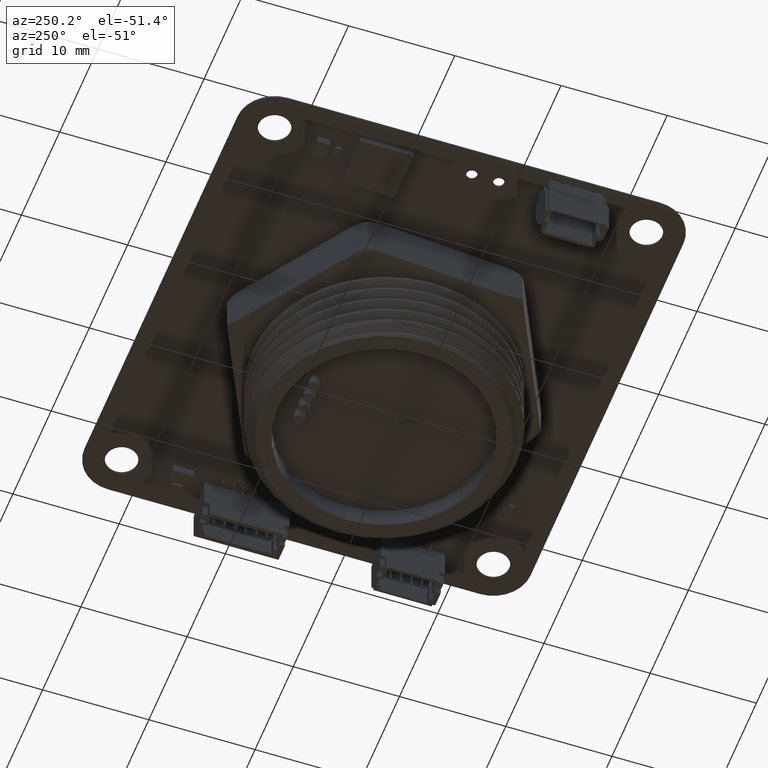
[diagram: clean part render]
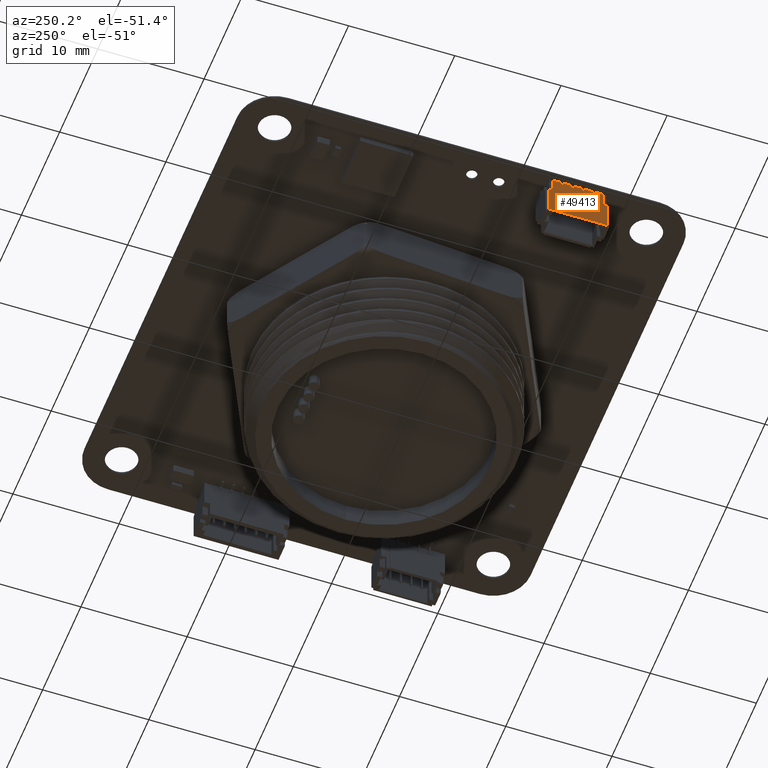
[diagram: same view with one face highlighted and labeled with its STEP entity id]
A machine part, auxiliary view. The second image highlights one B-rep face of the part: STEP entity #49413.
In plain terms, the highlighted planar face has unit normal (1, -0, 0).
Its self-contained STEP definition (entity closure, byte-faithful):
#49413 = ADVANCED_FACE('',(#49414),#49672,.F.);
#49414 = FACE_BOUND('',#49415,.T.);
#49415 = EDGE_LOOP('',(#49416,#49426,#49434,#49442,#49450,#49458,#49466,
    #49474,#49482,#49490,#49498,#49506,#49514,#49522,#49530,#49538,
    #49546,#49554,#49562,#49570,#49578,#49586,#49594,#49602,#49610,
    #49618,#49626,#49634,#49642,#49650,#49658,#49666));
#49416 = ORIENTED_EDGE('',*,*,#49417,.F.);
#49417 = EDGE_CURVE('',#49418,#49420,#49422,.T.);
#49418 = VERTEX_POINT('',#49419);
#49419 = CARTESIAN_POINT('',(2.35,1.588675134595,-1.45));
#49420 = VERTEX_POINT('',#49421);
#49421 = CARTESIAN_POINT('',(2.75,1.588675134595,-1.45));
#49422 = LINE('',#49423,#49424);
#49423 = CARTESIAN_POINT('',(2.5,1.588675134595,-1.45));
#49424 = VECTOR('',#49425,1.);
#49425 = DIRECTION('',(1.,-0.,-0.));
#49426 = ORIENTED_EDGE('',*,*,#49427,.T.);
#49427 = EDGE_CURVE('',#49418,#49428,#49430,.T.);
#49428 = VERTEX_POINT('',#49429);
#49429 = CARTESIAN_POINT('',(2.35,0.1,-1.45));
#49430 = LINE('',#49431,#49432);
#49431 = CARTESIAN_POINT('',(2.35,0.1,-1.45));
#49432 = VECTOR('',#49433,1.);
#49433 = DIRECTION('',(0.,-1.,0.));
#49434 = ORIENTED_EDGE('',*,*,#49435,.T.);
#49435 = EDGE_CURVE('',#49428,#49436,#49438,.T.);
#49436 = VERTEX_POINT('',#49437);
#49437 = CARTESIAN_POINT('',(1.725,1.E-01,-1.45));
#49438 = LINE('',#49439,#49440);
#49439 = CARTESIAN_POINT('',(3.,0.1,-1.45));
#49440 = VECTOR('',#49441,1.);
#49441 = DIRECTION('',(-1.,-0.,-0.));
#49442 = ORIENTED_EDGE('',*,*,#49443,.F.);
#49443 = EDGE_CURVE('',#49444,#49436,#49446,.T.);
#49444 = VERTEX_POINT('',#49445);
#49445 = CARTESIAN_POINT('',(1.575,0.25,-1.45));
#49446 = LINE('',#49447,#49448);
#49447 = CARTESIAN_POINT('',(2.3625,-0.5375,-1.45));
#49448 = VECTOR('',#49449,1.);
#49449 = DIRECTION('',(0.707106781187,-0.707106781187,0.));
#49450 = ORIENTED_EDGE('',*,*,#49451,.F.);
#49451 = EDGE_CURVE('',#49452,#49444,#49454,.T.);
#49452 = VERTEX_POINT('',#49453);
#49453 = CARTESIAN_POINT('',(1.575,0.7,-1.45));
#49454 = LINE('',#49455,#49456);
#49455 = CARTESIAN_POINT('',(1.575,0.1,-1.45));
#49456 = VECTOR('',#49457,1.);
#49457 = DIRECTION('',(0.,-1.,0.));
#49458 = ORIENTED_EDGE('',*,*,#49459,.F.);
#49459 = EDGE_CURVE('',#49460,#49452,#49462,.T.);
#49460 = VERTEX_POINT('',#49461);
#49461 = CARTESIAN_POINT('',(1.425,0.7,-1.45));
#49462 = LINE('',#49463,#49464);
#49463 = CARTESIAN_POINT('',(3.,0.7,-1.45));
#49464 = VECTOR('',#49465,1.);
#49465 = DIRECTION('',(1.,0.,-0.));
#49466 = ORIENTED_EDGE('',*,*,#49467,.T.);
#49467 = EDGE_CURVE('',#49460,#49468,#49470,.T.);
#49468 = VERTEX_POINT('',#49469);
#49469 = CARTESIAN_POINT('',(1.425,0.25,-1.45));
#49470 = LINE('',#49471,#49472);
#49471 = CARTESIAN_POINT('',(1.425,0.1,-1.45));
#49472 = VECTOR('',#49473,1.);
#49473 = DIRECTION('',(0.,-1.,0.));
#49474 = ORIENTED_EDGE('',*,*,#49475,.T.);
#49475 = EDGE_CURVE('',#49468,#49476,#49478,.T.);
#49476 = VERTEX_POINT('',#49477);
#49477 = CARTESIAN_POINT('',(1.275,0.1,-1.45));
#49478 = LINE('',#49479,#49480);
#49479 = CARTESIAN_POINT('',(2.1375,0.9625,-1.45));
#49480 = VECTOR('',#49481,1.);
#49481 = DIRECTION('',(-0.707106781187,-0.707106781187,0.));
#49482 = ORIENTED_EDGE('',*,*,#49483,.T.);
#49483 = EDGE_CURVE('',#49476,#49484,#49486,.T.);
#49484 = VERTEX_POINT('',#49485);
#49485 = CARTESIAN_POINT('',(0.725,1.E-01,-1.45));
#49486 = LINE('',#49487,#49488);
#49487 = CARTESIAN_POINT('',(3.,0.1,-1.45));
#49488 = VECTOR('',#49489,1.);
#49489 = DIRECTION('',(-1.,-0.,-0.));
#49490 = ORIENTED_EDGE('',*,*,#49491,.F.);
#49491 = EDGE_CURVE('',#49492,#49484,#49494,.T.);
#49492 = VERTEX_POINT('',#49493);
#49493 = CARTESIAN_POINT('',(0.575,0.25,-1.45));
#49494 = LINE('',#49495,#49496);
#49495 = CARTESIAN_POINT('',(1.8625,-1.0375,-1.45));
#49496 = VECTOR('',#49497,1.);
#49497 = DIRECTION('',(0.707106781187,-0.707106781187,0.));
#49498 = ORIENTED_EDGE('',*,*,#49499,.F.);
#49499 = EDGE_CURVE('',#49500,#49492,#49502,.T.);
#49500 = VERTEX_POINT('',#49501);
#49501 = CARTESIAN_POINT('',(0.575,0.7,-1.45));
#49502 = LINE('',#49503,#49504);
#49503 = CARTESIAN_POINT('',(0.575,1.E-01,-1.45));
#49504 = VECTOR('',#49505,1.);
#49505 = DIRECTION('',(1.807003620809E-16,-1.,0.));
#49506 = ORIENTED_EDGE('',*,*,#49507,.F.);
#49507 = EDGE_CURVE('',#49508,#49500,#49510,.T.);
#49508 = VERTEX_POINT('',#49509);
#49509 = CARTESIAN_POINT('',(0.425,0.7,-1.45));
#49510 = LINE('',#49511,#49512);
#49511 = CARTESIAN_POINT('',(3.,0.7,-1.45));
#49512 = VECTOR('',#49513,1.);
#49513 = DIRECTION('',(1.,0.,-0.));
#49514 = ORIENTED_EDGE('',*,*,#49515,.T.);
#49515 = EDGE_CURVE('',#49508,#49516,#49518,.T.);
#49516 = VERTEX_POINT('',#49517);
#49517 = CARTESIAN_POINT('',(0.425,0.25,-1.45));
#49518 = LINE('',#49519,#49520);
#49519 = CARTESIAN_POINT('',(0.425,1.E-01,-1.45));
#49520 = VECTOR('',#49521,1.);
#49521 = DIRECTION('',(9.035018104046E-17,-1.,0.));
#49522 = ORIENTED_EDGE('',*,*,#49523,.T.);
#49523 = EDGE_CURVE('',#49516,#49524,#49526,.T.);
#49524 = VERTEX_POINT('',#49525);
#49525 = CARTESIAN_POINT('',(0.275,0.1,-1.45));
#49526 = LINE('',#49527,#49528);
#49527 = CARTESIAN_POINT('',(1.6375,1.4625,-1.45));
#49528 = VECTOR('',#49529,1.);
#49529 = DIRECTION('',(-0.707106781187,-0.707106781187,0.));
#49530 = ORIENTED_EDGE('',*,*,#49531,.T.);
#49531 = EDGE_CURVE('',#49524,#49532,#49534,.T.);
#49532 = VERTEX_POINT('',#49533);
#49533 = CARTESIAN_POINT('',(-0.275,0.1,-1.45));
#49534 = LINE('',#49535,#49536);
#49535 = CARTESIAN_POINT('',(3.,0.1,-1.45));
#49536 = VECTOR('',#49537,1.);
#49537 = DIRECTION('',(-1.,-0.,-0.));
#49538 = ORIENTED_EDGE('',*,*,#49539,.F.);
#49539 = EDGE_CURVE('',#49540,#49532,#49542,.T.);
#49540 = VERTEX_POINT('',#49541);
#49541 = CARTESIAN_POINT('',(-0.425,0.25,-1.45));
#49542 = LINE('',#49543,#49544);
#49543 = CARTESIAN_POINT('',(1.3625,-1.5375,-1.45));
#49544 = VECTOR('',#49545,1.);
#49545 = DIRECTION('',(0.707106781187,-0.707106781187,0.));
#49546 = ORIENTED_EDGE('',*,*,#49547,.F.);
#49547 = EDGE_CURVE('',#49548,#49540,#49550,.T.);
#49548 = VERTEX_POINT('',#49549);
#49549 = CARTESIAN_POINT('',(-0.425,0.7,-1.45));
#49550 = LINE('',#49551,#49552);
#49551 = CARTESIAN_POINT('',(-0.425,1.E-01,-1.45));
#49552 = VECTOR('',#49553,1.);
#49553 = DIRECTION('',(1.807003620809E-16,-1.,0.));
#49554 = ORIENTED_EDGE('',*,*,#49555,.F.);
#49555 = EDGE_CURVE('',#49556,#49548,#49558,.T.);
#49556 = VERTEX_POINT('',#49557);
#49557 = CARTESIAN_POINT('',(-0.575,0.7,-1.45));
#49558 = LINE('',#49559,#49560);
#49559 = CARTESIAN_POINT('',(3.,0.7,-1.45));
#49560 = VECTOR('',#49561,1.);
#49561 = DIRECTION('',(1.,0.,-0.));
#49562 = ORIENTED_EDGE('',*,*,#49563,.T.);
#49563 = EDGE_CURVE('',#49556,#49564,#49566,.T.);
#49564 = VERTEX_POINT('',#49565);
#49565 = CARTESIAN_POINT('',(-0.575,0.25,-1.45));
#49566 = LINE('',#49567,#49568);
#49567 = CARTESIAN_POINT('',(-0.575,0.1,-1.45));
#49568 = VECTOR('',#49569,1.);
#49569 = DIRECTION('',(0.,-1.,0.));
#49570 = ORIENTED_EDGE('',*,*,#49571,.T.);
#49571 = EDGE_CURVE('',#49564,#49572,#49574,.T.);
#49572 = VERTEX_POINT('',#49573);
#49573 = CARTESIAN_POINT('',(-0.725,1.E-01,-1.45));
#49574 = LINE('',#49575,#49576);
#49575 = CARTESIAN_POINT('',(1.1375,1.9625,-1.45));
#49576 = VECTOR('',#49577,1.);
#49577 = DIRECTION('',(-0.707106781187,-0.707106781187,0.));
#49578 = ORIENTED_EDGE('',*,*,#49579,.T.);
#49579 = EDGE_CURVE('',#49572,#49580,#49582,.T.);
#49580 = VERTEX_POINT('',#49581);
#49581 = CARTESIAN_POINT('',(-1.275,0.1,-1.45));
#49582 = LINE('',#49583,#49584);
#49583 = CARTESIAN_POINT('',(3.,0.1,-1.45));
#49584 = VECTOR('',#49585,1.);
#49585 = DIRECTION('',(-1.,-0.,-0.));
#49586 = ORIENTED_EDGE('',*,*,#49587,.F.);
#49587 = EDGE_CURVE('',#49588,#49580,#49590,.T.);
#49588 = VERTEX_POINT('',#49589);
#49589 = CARTESIAN_POINT('',(-1.425,0.25,-1.45));
#49590 = LINE('',#49591,#49592);
#49591 = CARTESIAN_POINT('',(0.8625,-2.0375,-1.45));
#49592 = VECTOR('',#49593,1.);
#49593 = DIRECTION('',(0.707106781187,-0.707106781187,0.));
#49594 = ORIENTED_EDGE('',*,*,#49595,.F.);
#49595 = EDGE_CURVE('',#49596,#49588,#49598,.T.);
#49596 = VERTEX_POINT('',#49597);
#49597 = CARTESIAN_POINT('',(-1.425,0.7,-1.45));
#49598 = LINE('',#49599,#49600);
#49599 = CARTESIAN_POINT('',(-1.425,0.1,-1.45));
#49600 = VECTOR('',#49601,1.);
#49601 = DIRECTION('',(0.,-1.,0.));
#49602 = ORIENTED_EDGE('',*,*,#49603,.F.);
#49603 = EDGE_CURVE('',#49604,#49596,#49606,.T.);
#49604 = VERTEX_POINT('',#49605);
#49605 = CARTESIAN_POINT('',(-1.575,0.7,-1.45));
#49606 = LINE('',#49607,#49608);
#49607 = CARTESIAN_POINT('',(3.,0.7,-1.45));
#49608 = VECTOR('',#49609,1.);
#49609 = DIRECTION('',(1.,0.,-0.));
#49610 = ORIENTED_EDGE('',*,*,#49611,.T.);
#49611 = EDGE_CURVE('',#49604,#49612,#49614,.T.);
#49612 = VERTEX_POINT('',#49613);
#49613 = CARTESIAN_POINT('',(-1.575,0.25,-1.45));
#49614 = LINE('',#49615,#49616);
#49615 = CARTESIAN_POINT('',(-1.575,0.1,-1.45));
#49616 = VECTOR('',#49617,1.);
#49617 = DIRECTION('',(0.,-1.,0.));
#49618 = ORIENTED_EDGE('',*,*,#49619,.T.);
#49619 = EDGE_CURVE('',#49612,#49620,#49622,.T.);
#49620 = VERTEX_POINT('',#49621);
#49621 = CARTESIAN_POINT('',(-1.725,1.E-01,-1.45));
#49622 = LINE('',#49623,#49624);
#49623 = CARTESIAN_POINT('',(0.6375,2.4625,-1.45));
#49624 = VECTOR('',#49625,1.);
#49625 = DIRECTION('',(-0.707106781187,-0.707106781187,0.));
#49626 = ORIENTED_EDGE('',*,*,#49627,.T.);
#49627 = EDGE_CURVE('',#49620,#49628,#49630,.T.);
#49628 = VERTEX_POINT('',#49629);
#49629 = CARTESIAN_POINT('',(-2.35,0.1,-1.45));
#49630 = LINE('',#49631,#49632);
#49631 = CARTESIAN_POINT('',(3.,0.1,-1.45));
#49632 = VECTOR('',#49633,1.);
#49633 = DIRECTION('',(-1.,-0.,-0.));
#49634 = ORIENTED_EDGE('',*,*,#49635,.T.);
#49635 = EDGE_CURVE('',#49628,#49636,#49638,.T.);
#49636 = VERTEX_POINT('',#49637);
#49637 = CARTESIAN_POINT('',(-2.35,1.588675134595,-1.45));
#49638 = LINE('',#49639,#49640);
#49639 = CARTESIAN_POINT('',(-2.35,1.588675134595,-1.45));
#49640 = VECTOR('',#49641,1.);
#49641 = DIRECTION('',(0.,1.,0.));
#49642 = ORIENTED_EDGE('',*,*,#49643,.T.);
#49643 = EDGE_CURVE('',#49636,#49644,#49646,.T.);
#49644 = VERTEX_POINT('',#49645);
#49645 = CARTESIAN_POINT('',(-2.75,1.588675134595,-1.45));
#49646 = LINE('',#49647,#49648);
#49647 = CARTESIAN_POINT('',(-2.5,1.588675134595,-1.45));
#49648 = VECTOR('',#49649,1.);
#49649 = DIRECTION('',(-1.,-0.,-0.));
#49650 = ORIENTED_EDGE('',*,*,#49651,.T.);
#49651 = EDGE_CURVE('',#49644,#49652,#49654,.T.);
#49652 = VERTEX_POINT('',#49653);
#49653 = CARTESIAN_POINT('',(-2.75,4.35,-1.45));
#49654 = LINE('',#49655,#49656);
#49655 = CARTESIAN_POINT('',(-2.75,0.,-1.45));
#49656 = VECTOR('',#49657,1.);
#49657 = DIRECTION('',(0.,1.,0.));
#49658 = ORIENTED_EDGE('',*,*,#49659,.F.);
#49659 = EDGE_CURVE('',#49660,#49652,#49662,.T.);
#49660 = VERTEX_POINT('',#49661);
#49661 = CARTESIAN_POINT('',(2.75,4.35,-1.45));
#49662 = LINE('',#49663,#49664);
#49663 = CARTESIAN_POINT('',(3.,4.35,-1.45));
#49664 = VECTOR('',#49665,1.);
#49665 = DIRECTION('',(-1.,-0.,-0.));
#49666 = ORIENTED_EDGE('',*,*,#49667,.F.);
#49667 = EDGE_CURVE('',#49420,#49660,#49668,.T.);
#49668 = LINE('',#49669,#49670);
#49669 = CARTESIAN_POINT('',(2.75,0.,-1.45));
#49670 = VECTOR('',#49671,1.);
#49671 = DIRECTION('',(0.,1.,0.));
#49672 = PLANE('',#49673);
#49673 = AXIS2_PLACEMENT_3D('',#49674,#49675,#49676);
#49674 = CARTESIAN_POINT('',(3.,0.1,-1.45));
#49675 = DIRECTION('',(0.,0.,1.));
#49676 = DIRECTION('',(1.,0.,-0.));